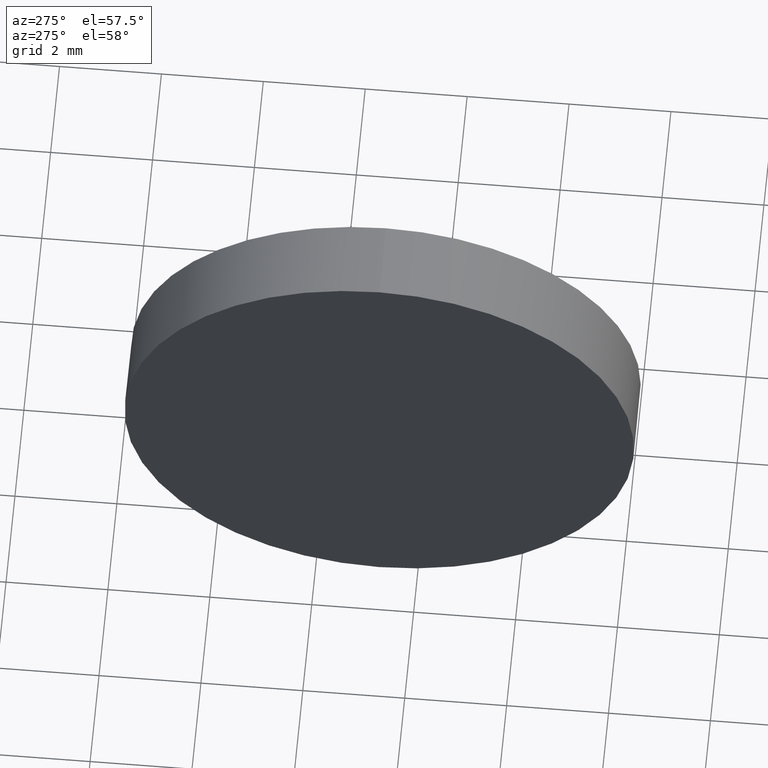
[diagram: clean part render]
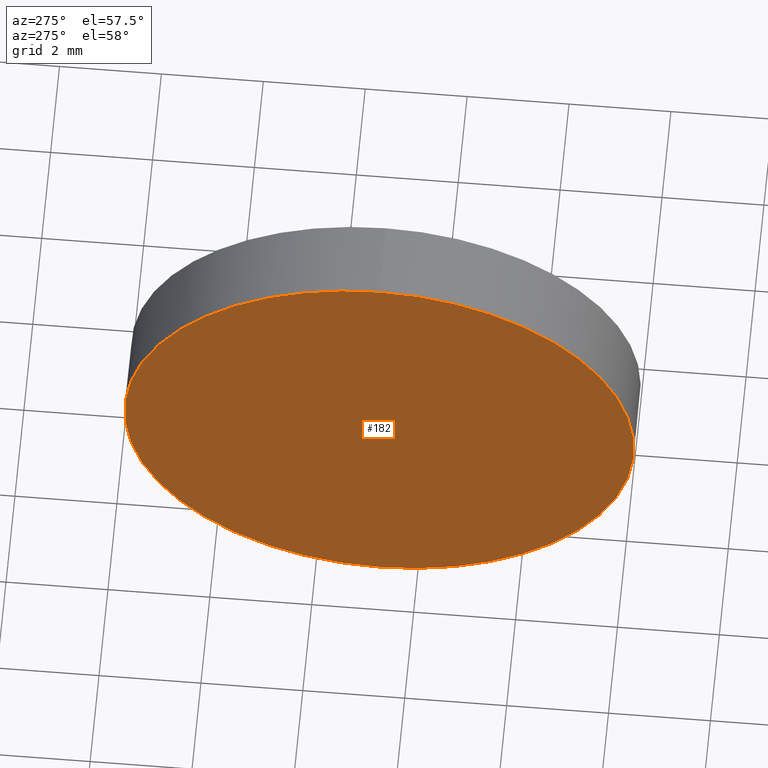
[diagram: same view with one face highlighted and labeled with its STEP entity id]
A machine part, auxiliary view. The second image highlights one B-rep face of the part: STEP entity #182.
In plain terms, the highlighted planar face has unit normal (1, 0, 0).
Its self-contained STEP definition (entity closure, byte-faithful):
#12 = VERTEX_POINT ( 'NONE', #17 ) ;
#15 = DIRECTION ( 'NONE',  ( 0.0000000000000000000, 0.0000000000000000000, 1.000000000000000000 ) ) ;
#17 = CARTESIAN_POINT ( 'NONE',  ( 506.8469411676877000, 24.74889030591634800, 5.000000000000000900 ) ) ;
#21 = CIRCLE ( 'NONE', #84, 5.000000000000000900 ) ;
#26 = FACE_OUTER_BOUND ( 'NONE', #153, .T. ) ;
#31 = DIRECTION ( 'NONE',  ( 1.000000000000000000, 0.0000000000000000000, 0.0000000000000000000 ) ) ;
#40 = ORIENTED_EDGE ( 'NONE', *, *, #67, .T. ) ;
#42 = DIRECTION ( 'NONE',  ( -1.000000000000000000, -0.0000000000000000000, -0.0000000000000000000 ) ) ;
#59 = EDGE_CURVE ( 'NONE', #60, #12, #21, .T. ) ;
#60 = VERTEX_POINT ( 'NONE', #142 ) ;
#67 = EDGE_CURVE ( 'NONE', #12, #60, #115, .T. ) ;
#75 = CARTESIAN_POINT ( 'NONE',  ( 506.8469411676877000, 24.74889030591634800, 0.0000000000000000000 ) ) ;
#84 = AXIS2_PLACEMENT_3D ( 'NONE', #134, #42, #144 ) ;
#87 = AXIS2_PLACEMENT_3D ( 'NONE', #75, #31, #93 ) ;
#89 = ORIENTED_EDGE ( 'NONE', *, *, #59, .T. ) ;
#93 = DIRECTION ( 'NONE',  ( 0.0000000000000000000, 0.0000000000000000000, -1.000000000000000000 ) ) ;
#115 = CIRCLE ( 'NONE', #155, 5.000000000000000900 ) ;
#134 = CARTESIAN_POINT ( 'NONE',  ( 506.8469411676877000, 24.74889030591634800, 0.0000000000000000000 ) ) ;
#142 = CARTESIAN_POINT ( 'NONE',  ( 506.8469411676877000, 24.74889030591634800, -5.000000000000000900 ) ) ;
#144 = DIRECTION ( 'NONE',  ( 0.0000000000000000000, 0.0000000000000000000, 1.000000000000000000 ) ) ;
#148 = PLANE ( 'NONE',  #87 ) ;
#153 = EDGE_LOOP ( 'NONE', ( #40, #89 ) ) ;
#155 = AXIS2_PLACEMENT_3D ( 'NONE', #170, #168, #15 ) ;
#168 = DIRECTION ( 'NONE',  ( -1.000000000000000000, -0.0000000000000000000, -0.0000000000000000000 ) ) ;
#170 = CARTESIAN_POINT ( 'NONE',  ( 506.8469411676877000, 24.74889030591634800, 0.0000000000000000000 ) ) ;
#182 = ADVANCED_FACE ( 'NONE', ( #26 ), #148, .F. ) ;